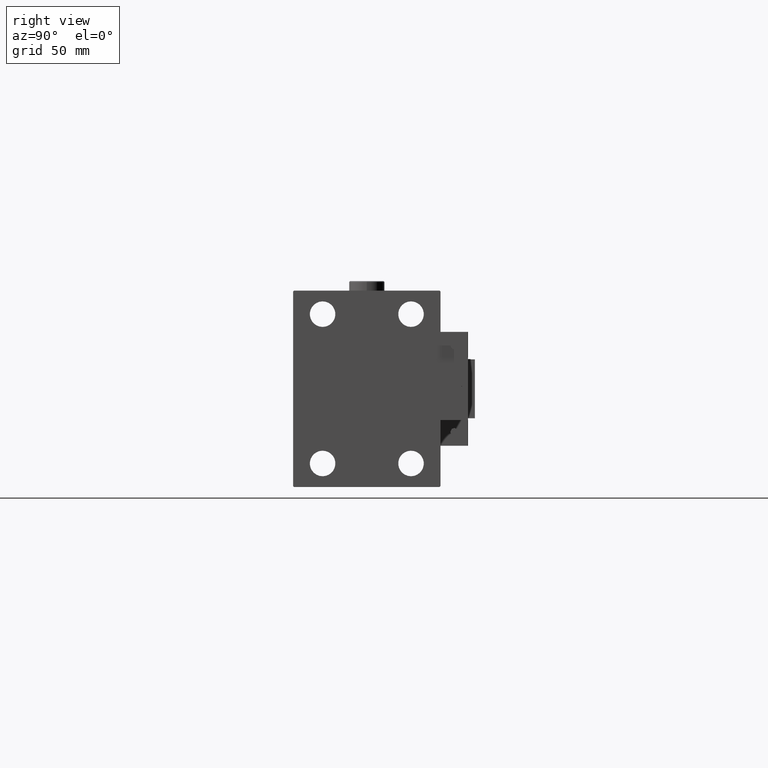
[diagram: clean part render]
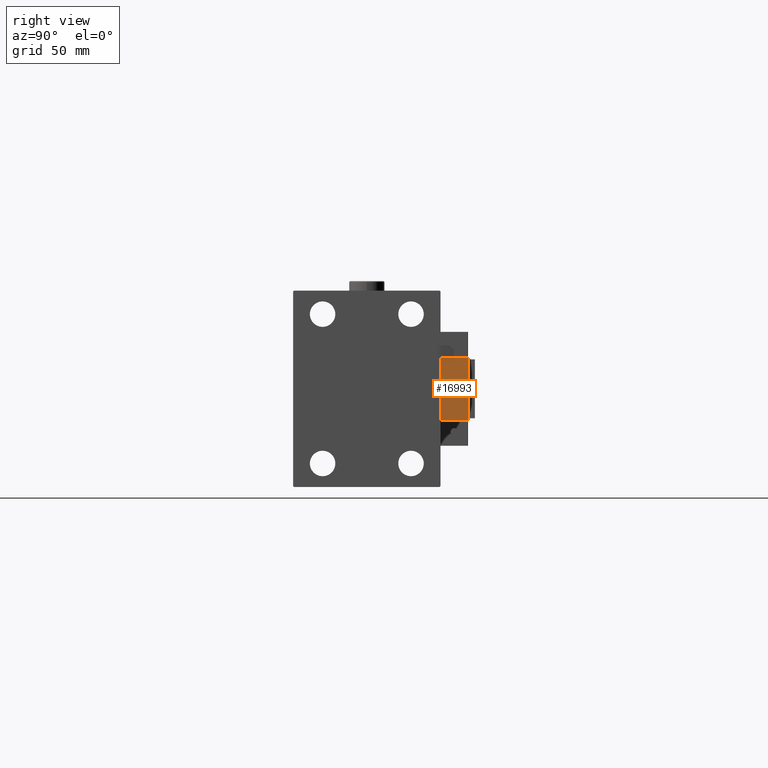
[diagram: same view with one face highlighted and labeled with its STEP entity id]
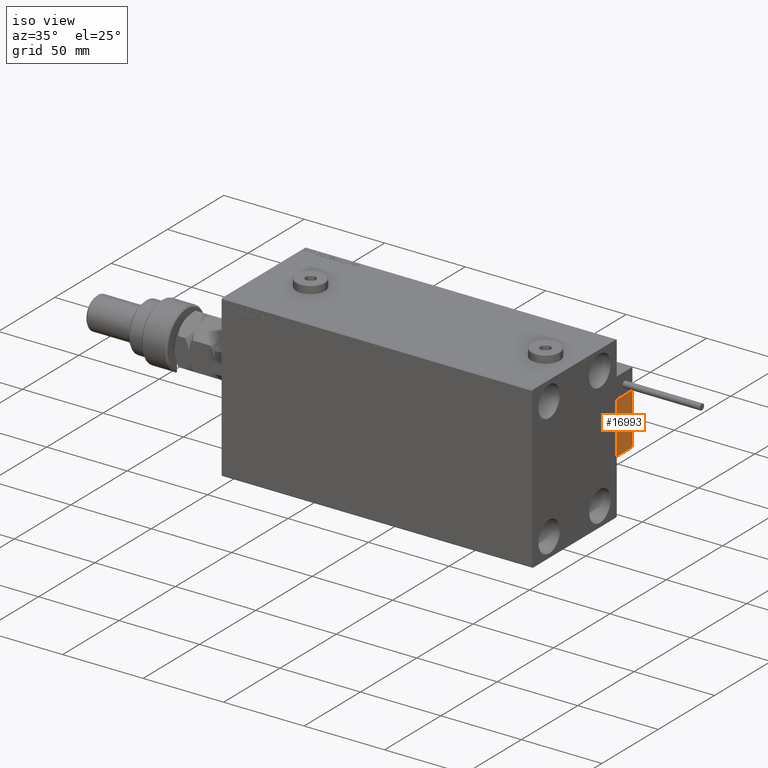
[diagram: same view with one face highlighted and labeled with its STEP entity id]
A machine part, right view. The second image highlights one B-rep face of the part: STEP entity #16993.
A second angle (iso view) of the same face is appended — the face is thin or edge-on in the first view.
In plain terms, the highlighted planar face has unit normal (-1, 0, 0).
Its self-contained STEP definition (entity closure, byte-faithful):
#406 = FACE_OUTER_BOUND ( 'NONE', #52502, .T. ) ;
#681 = CARTESIAN_POINT ( 'NONE',  ( 10.00000000000000000, 0.000000000000000000, 0.000000000000000000 ) ) ;
#1274 = CARTESIAN_POINT ( 'NONE',  ( 10.00000000000000000, 4.898587196589412829E-16, -4.000000000000000000 ) ) ;
#1881 = LINE ( 'NONE', #31927, #34839 ) ;
#2642 = EDGE_CURVE ( 'NONE', #46226, #22973, #1881, .T. ) ;
#3224 = CARTESIAN_POINT ( 'NONE',  ( 10.00000000000000000, 7.000000000000000000, 15.99999999999999289 ) ) ;
#5027 = ORIENTED_EDGE ( 'NONE', *, *, #16506, .T. ) ;
#5090 = AXIS2_PLACEMENT_3D ( 'NONE', #681, #42847, #51110 ) ;
#5238 = ORIENTED_EDGE ( 'NONE', *, *, #7613, .T. ) ;
#5820 = CARTESIAN_POINT ( 'NONE',  ( 10.00000000000000000, 7.000000000000000000, 15.99999999999999289 ) ) ;
#6965 = CARTESIAN_POINT ( 'NONE',  ( 10.00000000000000000, -7.000000000000000000, 15.99999999999999289 ) ) ;
#7613 = EDGE_CURVE ( 'NONE', #24452, #51774, #26696, .T. ) ;
#10061 = EDGE_LOOP ( 'NONE', ( #5027, #5238 ) ) ;
#10756 = DIRECTION ( 'NONE',  ( 0.000000000000000000, 0.000000000000000000, -1.000000000000000000 ) ) ;
#13673 = VERTEX_POINT ( 'NONE', #17890 ) ;
#15022 = CARTESIAN_POINT ( 'NONE',  ( 10.00000000000000000, 0.000000000000000000, 4.000000000000000000 ) ) ;
#15729 = LINE ( 'NONE', #54030, #27415 ) ;
#16097 = CARTESIAN_POINT ( 'NONE',  ( 10.00000000000000000, 0.000000000000000000, 0.000000000000000000 ) ) ;
#16340 = CARTESIAN_POINT ( 'NONE',  ( 10.00000000000000000, -7.000000000000000000, -16.00000000000000711 ) ) ;
#16506 = EDGE_CURVE ( 'NONE', #51774, #24452, #35865, .T. ) ;
#16993 = ADVANCED_FACE ( 'NONE', ( #30185, #406 ), #34053, .F. ) ;
#17344 = AXIS2_PLACEMENT_3D ( 'NONE', #16097, #32945, #27990 ) ;
#17873 = VECTOR ( 'NONE', #18824, 1000.000000000000000 ) ;
#17890 = CARTESIAN_POINT ( 'NONE',  ( 10.00000000000000000, 7.000000000000000000, -16.00000000000000711 ) ) ;
#18824 = DIRECTION ( 'NONE',  ( 0.000000000000000000, 0.000000000000000000, -1.000000000000000000 ) ) ;
#19491 = DIRECTION ( 'NONE',  ( 0.000000000000000000, 0.000000000000000000, 1.000000000000000000 ) ) ;
#19609 = DIRECTION ( 'NONE',  ( 0.000000000000000000, -1.000000000000000000, 0.000000000000000000 ) ) ;
#19970 = ORIENTED_EDGE ( 'NONE', *, *, #41208, .F. ) ;
#22973 = VERTEX_POINT ( 'NONE', #52508 ) ;
#23750 = EDGE_CURVE ( 'NONE', #46226, #13673, #52641, .T. ) ;
#24452 = VERTEX_POINT ( 'NONE', #1274 ) ;
#26696 = CIRCLE ( 'NONE', #36507, 4.000000000000000000 ) ;
#27218 = DIRECTION ( 'NONE',  ( -1.000000000000000000, 0.000000000000000000, 0.000000000000000000 ) ) ;
#27415 = VECTOR ( 'NONE', #19609, 1000.000000000000000 ) ;
#27990 = DIRECTION ( 'NONE',  ( 0.000000000000000000, 0.000000000000000000, 1.000000000000000000 ) ) ;
#30185 = FACE_BOUND ( 'NONE', #10061, .T. ) ;
#31381 = DIRECTION ( 'NONE',  ( 0.000000000000000000, -1.000000000000000000, 0.000000000000000000 ) ) ;
#31927 = CARTESIAN_POINT ( 'NONE',  ( 10.00000000000000000, 7.000000000000000000, 15.99999999999999289 ) ) ;
#31935 = ORIENTED_EDGE ( 'NONE', *, *, #47955, .T. ) ;
#32945 = DIRECTION ( 'NONE',  ( -1.000000000000000000, 0.000000000000000000, 0.000000000000000000 ) ) ;
#33928 = ORIENTED_EDGE ( 'NONE', *, *, #23750, .F. ) ;
#34053 = PLANE ( 'NONE',  #5090 ) ;
#34839 = VECTOR ( 'NONE', #31381, 1000.000000000000000 ) ;
#35865 = CIRCLE ( 'NONE', #17344, 4.000000000000000000 ) ;
#36507 = AXIS2_PLACEMENT_3D ( 'NONE', #39919, #27218, #19491 ) ;
#39919 = CARTESIAN_POINT ( 'NONE',  ( 10.00000000000000000, 0.000000000000000000, 0.000000000000000000 ) ) ;
#41006 = VERTEX_POINT ( 'NONE', #16340 ) ;
#41208 = EDGE_CURVE ( 'NONE', #13673, #41006, #15729, .T. ) ;
#42847 = DIRECTION ( 'NONE',  ( -1.000000000000000000, 0.000000000000000000, -0.000000000000000000 ) ) ;
#44810 = VECTOR ( 'NONE', #10756, 1000.000000000000000 ) ;
#44983 = LINE ( 'NONE', #6965, #17873 ) ;
#46226 = VERTEX_POINT ( 'NONE', #3224 ) ;
#46800 = ORIENTED_EDGE ( 'NONE', *, *, #2642, .T. ) ;
#47955 = EDGE_CURVE ( 'NONE', #22973, #41006, #44983, .T. ) ;
#51110 = DIRECTION ( 'NONE',  ( -0.000000000000000000, 0.000000000000000000, 1.000000000000000000 ) ) ;
#51774 = VERTEX_POINT ( 'NONE', #15022 ) ;
#52502 = EDGE_LOOP ( 'NONE', ( #31935, #19970, #33928, #46800 ) ) ;
#52508 = CARTESIAN_POINT ( 'NONE',  ( 10.00000000000000000, -7.000000000000000000, 15.99999999999999289 ) ) ;
#52641 = LINE ( 'NONE', #5820, #44810 ) ;
#54030 = CARTESIAN_POINT ( 'NONE',  ( 10.00000000000000000, 7.000000000000000000, -16.00000000000000711 ) ) ;